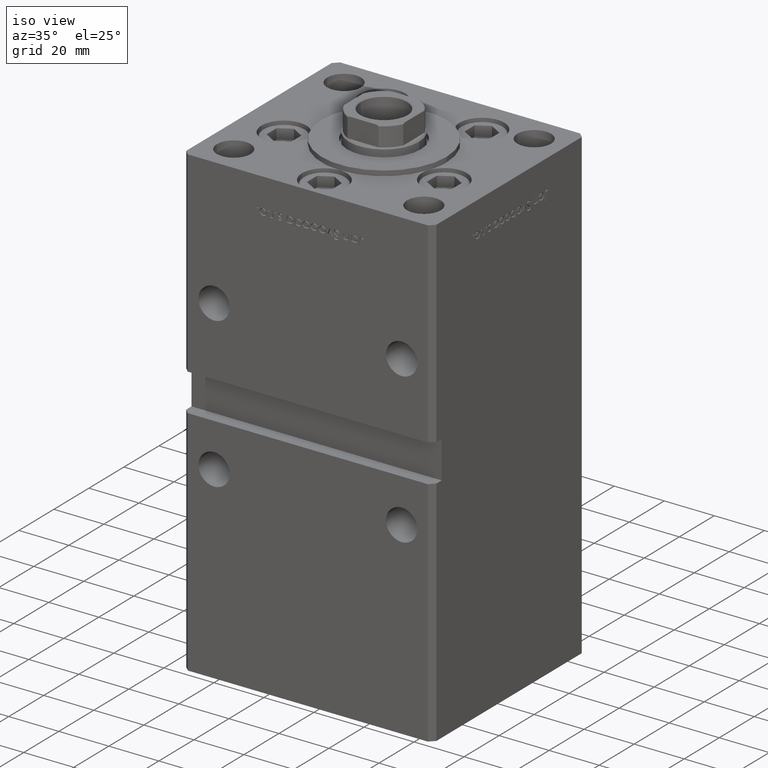
[diagram: clean part render]
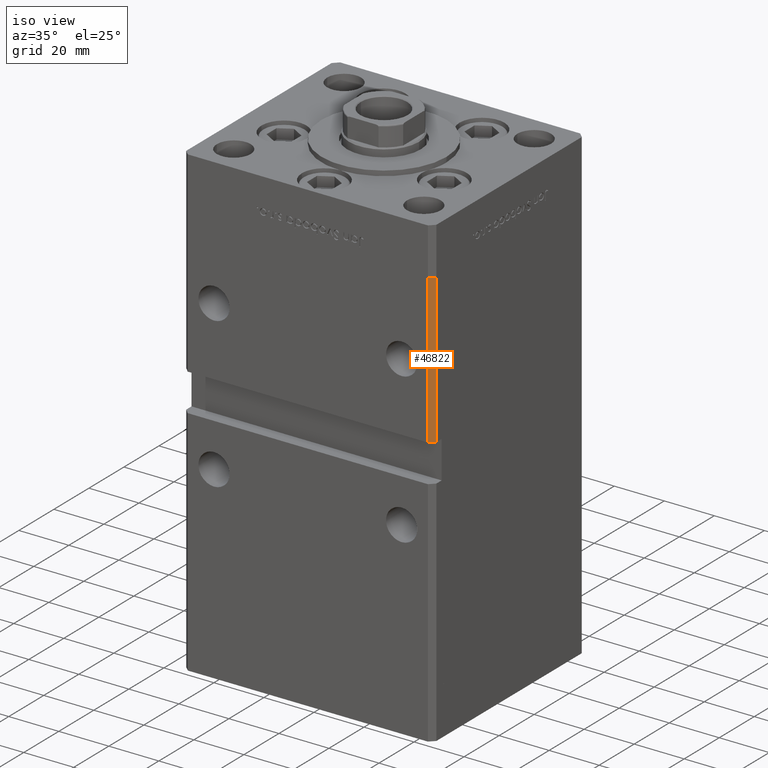
[diagram: same view with one face highlighted and labeled with its STEP entity id]
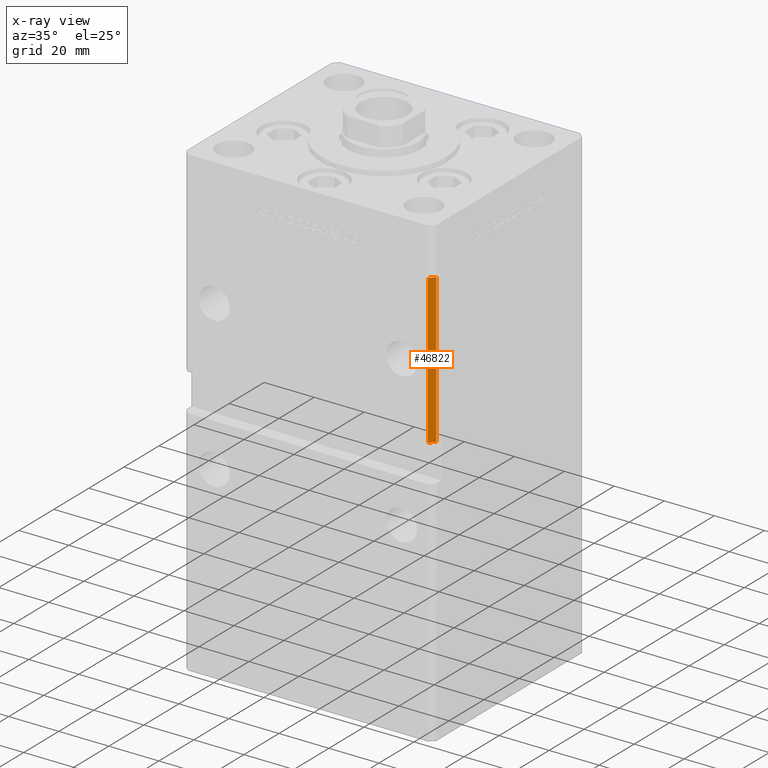
[diagram: x-ray of the same camera — body ghosted, the highlighted face saturated]
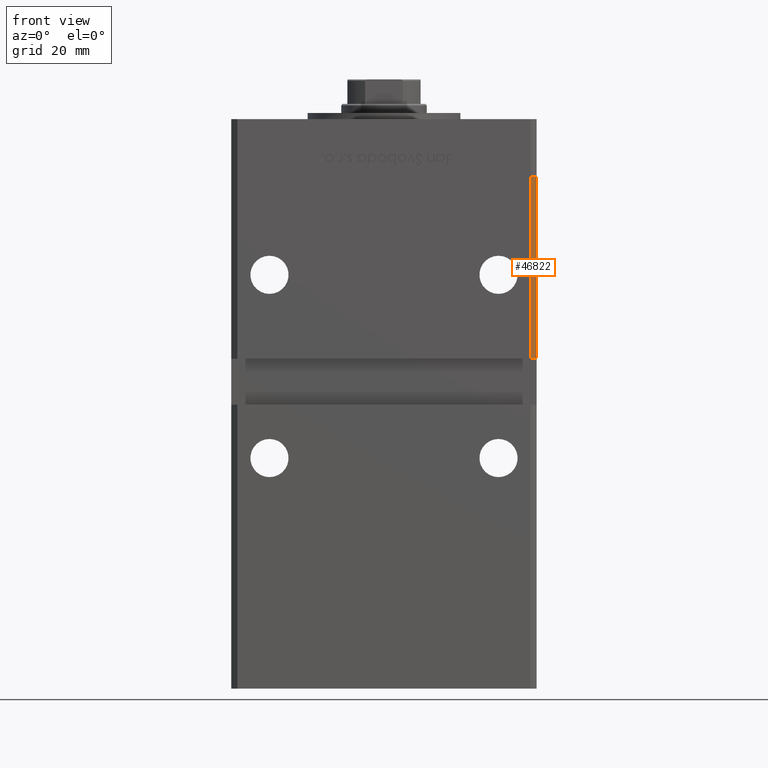
[diagram: same view with one face highlighted and labeled with its STEP entity id]
A machine part, iso view. The second image highlights one B-rep face of the part: STEP entity #46822.
The next image is the same camera in x-ray: the body ghosted, the highlighted face saturated — about 0% of this face is hidden behind the body in this view.
A second angle (front view) of the same face is appended — the face is thin or edge-on in the first view.
In plain terms, the highlighted planar face has unit normal (0.7071, -0.7071, 0).
Its self-contained STEP definition (entity closure, byte-faithful):
#3063 = VERTEX_POINT ( 'NONE', #47047 ) ;
#3496 = EDGE_LOOP ( 'NONE', ( #51972, #39520, #13995, #48894 ) ) ;
#4247 = EDGE_CURVE ( 'NONE', #3063, #28943, #8392, .T. ) ;
#7146 = DIRECTION ( 'NONE',  ( -0.000000000000000000, -0.000000000000000000, -1.000000000000000000 ) ) ;
#7274 = CARTESIAN_POINT ( 'NONE',  ( 49.99999999999998579, -41.49999999999999289, 148.5000000000000000 ) ) ;
#8392 = LINE ( 'NONE', #35940, #12403 ) ;
#8848 = CARTESIAN_POINT ( 'NONE',  ( 49.99999999999998579, -41.49999999999999289, 148.5000000000000000 ) ) ;
#11304 = DIRECTION ( 'NONE',  ( -0.7071067811865474617, -0.7071067811865474617, 0.000000000000000000 ) ) ;
#12403 = VECTOR ( 'NONE', #7146, 1000.000000000000000 ) ;
#13267 = EDGE_CURVE ( 'NONE', #22744, #26848, #48897, .T. ) ;
#13995 = ORIENTED_EDGE ( 'NONE', *, *, #25092, .T. ) ;
#18413 = DIRECTION ( 'NONE',  ( -0.7071067811865474617, -0.7071067811865474617, 0.000000000000000000 ) ) ;
#20072 = CARTESIAN_POINT ( 'NONE',  ( 49.99999999999998579, -41.49999999999999289, 148.5000000000000000 ) ) ;
#20858 = CARTESIAN_POINT ( 'NONE',  ( 47.99999999999998579, -43.50000000000000000, 89.00000000000000000 ) ) ;
#21482 = DIRECTION ( 'NONE',  ( 0.7071067811865475727, -0.7071067811865475727, 0.000000000000000000 ) ) ;
#22021 = FACE_OUTER_BOUND ( 'NONE', #3496, .T. ) ;
#22744 = VERTEX_POINT ( 'NONE', #49448 ) ;
#25092 = EDGE_CURVE ( 'NONE', #22744, #3063, #36853, .T. ) ;
#25787 = PLANE ( 'NONE',  #41800 ) ;
#26848 = VERTEX_POINT ( 'NONE', #28579 ) ;
#28579 = CARTESIAN_POINT ( 'NONE',  ( 49.99999999999998579, -41.49999999999999289, 89.00000000000000000 ) ) ;
#28943 = VERTEX_POINT ( 'NONE', #20858 ) ;
#30810 = CARTESIAN_POINT ( 'NONE',  ( 49.99999999999998579, -41.49999999999999289, 89.00000000000000000 ) ) ;
#34059 = EDGE_CURVE ( 'NONE', #26848, #28943, #46698, .T. ) ;
#35940 = CARTESIAN_POINT ( 'NONE',  ( 47.99999999999998579, -43.50000000000000000, 148.5000000000000000 ) ) ;
#36853 = LINE ( 'NONE', #7274, #48843 ) ;
#37033 = DIRECTION ( 'NONE',  ( -0.000000000000000000, -0.000000000000000000, -1.000000000000000000 ) ) ;
#37913 = DIRECTION ( 'NONE',  ( 0.7071067811865474617, 0.7071067811865474617, 0.000000000000000000 ) ) ;
#39520 = ORIENTED_EDGE ( 'NONE', *, *, #13267, .F. ) ;
#41800 = AXIS2_PLACEMENT_3D ( 'NONE', #8848, #21482, #37913 ) ;
#46698 = LINE ( 'NONE', #30810, #50828 ) ;
#46822 = ADVANCED_FACE ( 'NONE', ( #22021 ), #25787, .T. ) ;
#47047 = CARTESIAN_POINT ( 'NONE',  ( 47.99999999999998579, -43.50000000000000000, 148.5000000000000000 ) ) ;
#48843 = VECTOR ( 'NONE', #11304, 1000.000000000000114 ) ;
#48894 = ORIENTED_EDGE ( 'NONE', *, *, #4247, .T. ) ;
#48897 = LINE ( 'NONE', #20072, #50291 ) ;
#49448 = CARTESIAN_POINT ( 'NONE',  ( 49.99999999999998579, -41.49999999999999289, 148.5000000000000000 ) ) ;
#50291 = VECTOR ( 'NONE', #37033, 1000.000000000000000 ) ;
#50828 = VECTOR ( 'NONE', #18413, 1000.000000000000114 ) ;
#51972 = ORIENTED_EDGE ( 'NONE', *, *, #34059, .F. ) ;